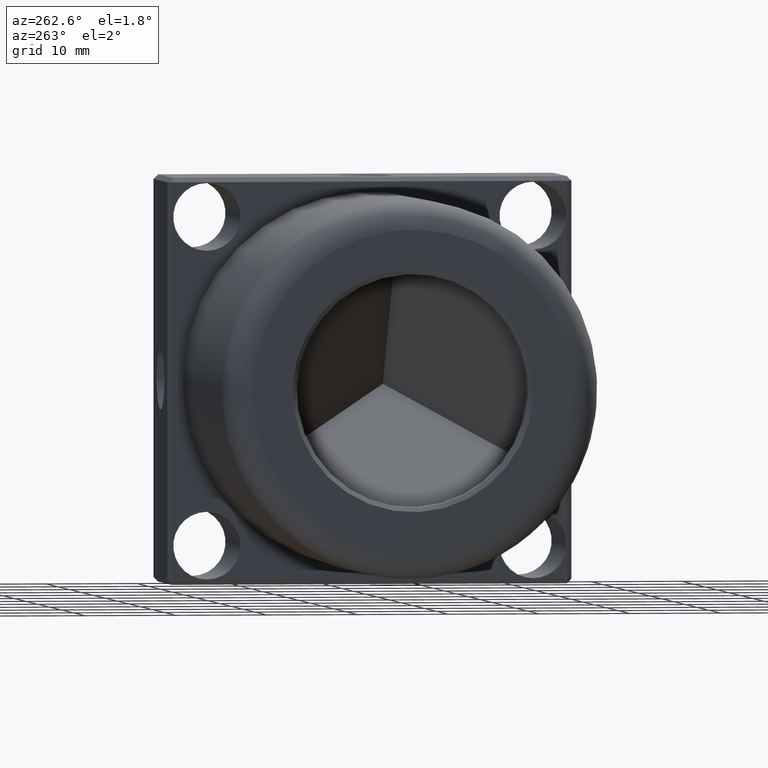
[diagram: clean part render]
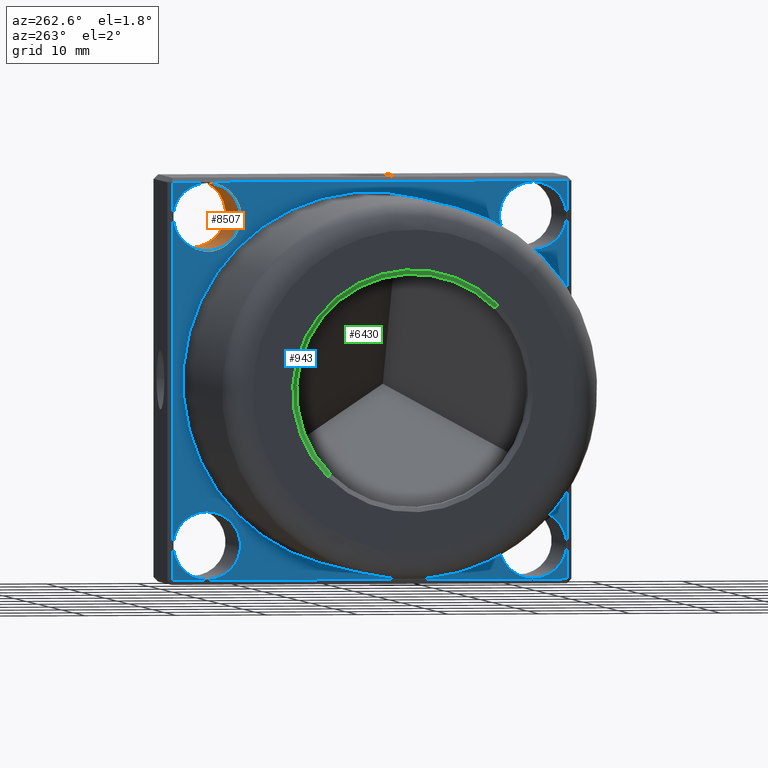
[diagram: same view with three faces highlighted in distinct colors, each labeled with its STEP entity id]
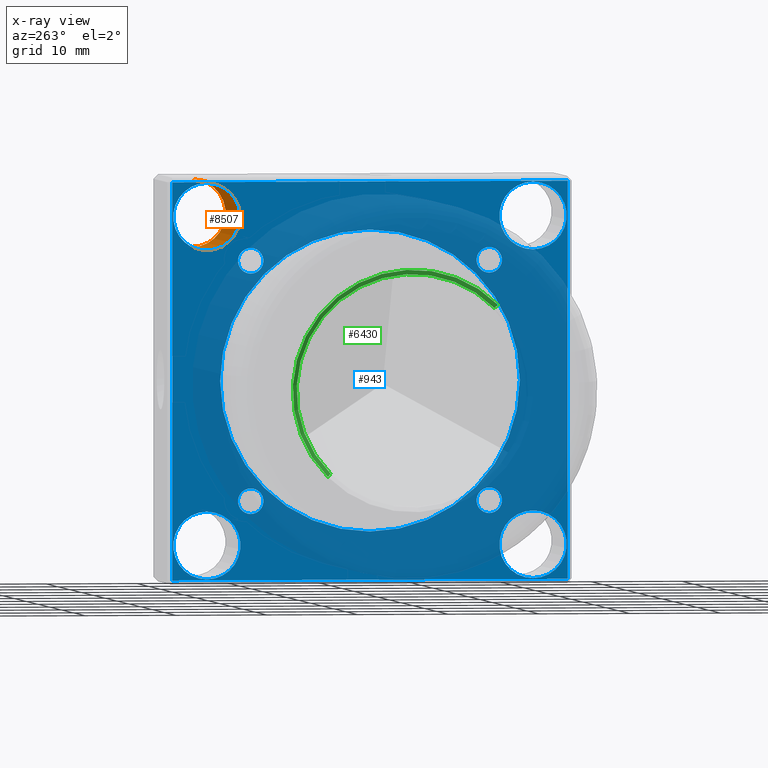
[diagram: x-ray of the same camera — body ghosted, the three highlighted faces saturated]
A machine part, auxiliary view with three faces highlighted in distinct colors.
The next image is the same camera in x-ray (body ghosted, the three faces saturated) — at least one of them is partly hidden behind the body in this view.
Their STEP definitions:

[orange] entity #8507 — the highlighted cylindrical surface (edge-blend (fillet) strip) has radius 3.7 mm, axis along (-1, 0, -0).
#88 = CARTESIAN_POINT ( 'NONE',  ( 36.50000000000000700, 17.96051224213820400, 14.26051224213839700 ) ) ;
#182 = VECTOR ( 'NONE', #305, 1000.000000000000000 ) ;
#305 = DIRECTION ( 'NONE',  ( -1.000000000000000000, 1.036413853914698600E-017, -5.453505792938099400E-017 ) ) ;
#348 = DIRECTION ( 'NONE',  ( -1.000000000000000000, 1.036413853914698600E-017, -5.453505792938099400E-017 ) ) ;
#468 = EDGE_CURVE ( 'NONE', #1265, #3286, #6490, .T. ) ;
#768 = FACE_OUTER_BOUND ( 'NONE', #4393, .T. ) ;
#800 = EDGE_CURVE ( 'NONE', #7990, #1265, #3995, .T. ) ;
#1040 = DIRECTION ( 'NONE',  ( -1.000000000000000000, 1.036413853914698600E-017, -5.453505792938099400E-017 ) ) ;
#1265 = VERTEX_POINT ( 'NONE', #4453 ) ;
#1509 = VECTOR ( 'NONE', #1040, 1000.000000000000000 ) ;
#2001 = CARTESIAN_POINT ( 'NONE',  ( 36.50000000000000700, 17.96051224213820400, 21.66051224213839900 ) ) ;
#2101 = CIRCLE ( 'NONE', #11184, 3.700000000000002000 ) ;
#2306 = VERTEX_POINT ( 'NONE', #88 ) ;
#2364 = LINE ( 'NONE', #3172, #182 ) ;
#2897 = CARTESIAN_POINT ( 'NONE',  ( 36.50000000000000700, 17.96051224213820400, 21.66051224213839900 ) ) ;
#3172 = CARTESIAN_POINT ( 'NONE',  ( 36.50000000000000700, 17.96051224213820400, 14.26051224213839700 ) ) ;
#3286 = VERTEX_POINT ( 'NONE', #2001 ) ;
#3626 = DIRECTION ( 'NONE',  ( -1.000000000000000000, 1.036413853914698600E-017, -5.453505792938099400E-017 ) ) ;
#3995 = CIRCLE ( 'NONE', #6435, 3.700000000000002000 ) ;
#4087 = CARTESIAN_POINT ( 'NONE',  ( 36.50000000000000700, 17.96051224213820400, 17.96051224213839600 ) ) ;
#4393 = EDGE_LOOP ( 'NONE', ( #7264, #11584, #5200, #5828 ) ) ;
#4453 = CARTESIAN_POINT ( 'NONE',  ( 49.20000000000000300, 17.96051224213820400, 21.66051224213839900 ) ) ;
#4958 = EDGE_CURVE ( 'NONE', #7990, #2306, #2364, .T. ) ;
#5200 = ORIENTED_EDGE ( 'NONE', *, *, #7226, .T. ) ;
#5828 = ORIENTED_EDGE ( 'NONE', *, *, #468, .F. ) ;
#5936 = AXIS2_PLACEMENT_3D ( 'NONE', #4087, #6932, #10688 ) ;
#5963 = CARTESIAN_POINT ( 'NONE',  ( 49.20000000000000300, 17.96051224213820400, 17.96051224213839600 ) ) ;
#6435 = AXIS2_PLACEMENT_3D ( 'NONE', #5963, #348, #6922 ) ;
#6490 = LINE ( 'NONE', #2897, #1509 ) ;
#6922 = DIRECTION ( 'NONE',  ( 0.0000000000000000000, 0.0000000000000000000, 1.000000000000000000 ) ) ;
#6932 = DIRECTION ( 'NONE',  ( -1.000000000000000000, 1.036413853914698600E-017, -5.453505792938099400E-017 ) ) ;
#7226 = EDGE_CURVE ( 'NONE', #2306, #3286, #2101, .T. ) ;
#7264 = ORIENTED_EDGE ( 'NONE', *, *, #800, .F. ) ;
#7990 = VERTEX_POINT ( 'NONE', #10741 ) ;
#8507 = ADVANCED_FACE ( 'NONE', ( #768 ), #9280, .F. ) ;
#9237 = CARTESIAN_POINT ( 'NONE',  ( 36.50000000000000700, 17.96051224213820400, 17.96051224213839600 ) ) ;
#9280 = CYLINDRICAL_SURFACE ( 'NONE', #5936, 3.700000000000002000 ) ;
#10167 = DIRECTION ( 'NONE',  ( 0.0000000000000000000, 0.0000000000000000000, 1.000000000000000000 ) ) ;
#10688 = DIRECTION ( 'NONE',  ( 0.0000000000000000000, 0.0000000000000000000, 1.000000000000000000 ) ) ;
#10741 = CARTESIAN_POINT ( 'NONE',  ( 49.20000000000000300, 17.96051224213820400, 14.26051224213839700 ) ) ;
#11184 = AXIS2_PLACEMENT_3D ( 'NONE', #9237, #3626, #10167 ) ;
#11584 = ORIENTED_EDGE ( 'NONE', *, *, #4958, .T. ) ;

[blue] entity #943 — the highlighted planar face has unit normal (-1, 0, -0).
#43 = EDGE_LOOP ( 'NONE', ( #5583, #5475 ) ) ;
#88 = CARTESIAN_POINT ( 'NONE',  ( 36.50000000000000700, 17.96051224213820400, 14.26051224213839700 ) ) ;
#162 = ORIENTED_EDGE ( 'NONE', *, *, #320, .F. ) ;
#290 = ORIENTED_EDGE ( 'NONE', *, *, #6933, .F. ) ;
#320 = EDGE_CURVE ( 'NONE', #1702, #11603, #7962, .T. ) ;
#648 = ORIENTED_EDGE ( 'NONE', *, *, #7898, .F. ) ;
#654 = AXIS2_PLACEMENT_3D ( 'NONE', #11996, #6397, #770 ) ;
#667 = VECTOR ( 'NONE', #4351, 1000.000000000000000 ) ;
#719 = VERTEX_POINT ( 'NONE', #6860 ) ;
#746 = LINE ( 'NONE', #919, #5435 ) ;
#749 = DIRECTION ( 'NONE',  ( -1.000000000000000000, 1.036413853914698600E-017, -5.453505792938099400E-017 ) ) ;
#764 = CIRCLE ( 'NONE', #6151, 1.400000000000000100 ) ;
#770 = DIRECTION ( 'NONE',  ( 0.0000000000000000000, 0.0000000000000000000, 1.000000000000000000 ) ) ;
#881 = CARTESIAN_POINT ( 'NONE',  ( 36.50000000000000700, 13.13450846054023700, -14.53450846054000100 ) ) ;
#909 = FACE_BOUND ( 'NONE', #11375, .T. ) ;
#919 = CARTESIAN_POINT ( 'NONE',  ( 36.50000000000000000, 22.25000000000000400, 21.74999999999999600 ) ) ;
#943 = ADVANCED_FACE ( 'NONE', ( #8696, #3677, #6164, #11151, #1205, #10865, #8366, #5886, #3382, #909 ), #4180, .T. ) ;
#953 = CARTESIAN_POINT ( 'NONE',  ( 36.50000000000000700, -13.13450846054004200, -13.13450846054019800 ) ) ;
#970 = ORIENTED_EDGE ( 'NONE', *, *, #5397, .F. ) ;
#1028 = CARTESIAN_POINT ( 'NONE',  ( 36.50000000000000700, 13.13450846054004200, 13.13450846054019800 ) ) ;
#1049 = AXIS2_PLACEMENT_3D ( 'NONE', #1686, #8243, #2618 ) ;
#1052 = VERTEX_POINT ( 'NONE', #10168 ) ;
#1114 = DIRECTION ( 'NONE',  ( -1.000000000000000000, 1.036413853914698600E-017, -5.453505792938099400E-017 ) ) ;
#1136 = CIRCLE ( 'NONE', #10945, 3.700000000000002000 ) ;
#1205 = FACE_OUTER_BOUND ( 'NONE', #7199, .T. ) ;
#1312 = CARTESIAN_POINT ( 'NONE',  ( 36.50000000000000000, -17.96051224213844600, 17.96051224213815400 ) ) ;
#1321 = ORIENTED_EDGE ( 'NONE', *, *, #1426, .F. ) ;
#1324 = CARTESIAN_POINT ( 'NONE',  ( 36.50000000000000700, 1.316245594471667700E-016, -6.925952357031400500E-016 ) ) ;
#1393 = CARTESIAN_POINT ( 'NONE',  ( 36.50000000000000700, -17.96051224213820400, -21.66051224213839900 ) ) ;
#1413 = CIRCLE ( 'NONE', #1049, 3.700000000000002000 ) ;
#1426 = EDGE_CURVE ( 'NONE', #1915, #2641, #9004, .T. ) ;
#1544 = ORIENTED_EDGE ( 'NONE', *, *, #7080, .T. ) ;
#1546 = ORIENTED_EDGE ( 'NONE', *, *, #3452, .T. ) ;
#1686 = CARTESIAN_POINT ( 'NONE',  ( 36.50000000000000000, -17.96051224213844600, 17.96051224213815400 ) ) ;
#1702 = VERTEX_POINT ( 'NONE', #10795 ) ;
#1704 = DIRECTION ( 'NONE',  ( -1.000000000000000000, 1.036413853914698600E-017, -5.453505792938099400E-017 ) ) ;
#1879 = DIRECTION ( 'NONE',  ( 0.0000000000000000000, 0.0000000000000000000, 1.000000000000000000 ) ) ;
#1915 = VERTEX_POINT ( 'NONE', #8411 ) ;
#1960 = DIRECTION ( 'NONE',  ( 0.0000000000000000000, 0.0000000000000000000, 1.000000000000000000 ) ) ;
#2001 = CARTESIAN_POINT ( 'NONE',  ( 36.50000000000000700, 17.96051224213820400, 21.66051224213839900 ) ) ;
#2101 = CIRCLE ( 'NONE', #11184, 3.700000000000002000 ) ;
#2104 = CIRCLE ( 'NONE', #9820, 3.700000000000000200 ) ;
#2116 = AXIS2_PLACEMENT_3D ( 'NONE', #1028, #7585, #1960 ) ;
#2256 = DIRECTION ( 'NONE',  ( 0.0000000000000000000, 0.0000000000000000000, 1.000000000000000000 ) ) ;
#2264 = DIRECTION ( 'NONE',  ( 0.0000000000000000000, 1.110223024625155800E-016, 1.000000000000000000 ) ) ;
#2306 = VERTEX_POINT ( 'NONE', #88 ) ;
#2328 = DIRECTION ( 'NONE',  ( -1.000000000000000000, 1.036413853914698400E-017, -5.453505792938079700E-017 ) ) ;
#2487 = CIRCLE ( 'NONE', #3732, 1.400000000000000100 ) ;
#2519 = CIRCLE ( 'NONE', #4544, 1.400000000000000100 ) ;
#2618 = DIRECTION ( 'NONE',  ( 0.0000000000000000000, 0.0000000000000000000, 1.000000000000000000 ) ) ;
#2641 = VERTEX_POINT ( 'NONE', #11964 ) ;
#2726 = EDGE_CURVE ( 'NONE', #6643, #4318, #746, .T. ) ;
#2735 = DIRECTION ( 'NONE',  ( -1.000000000000000000, 1.036413853914698600E-017, -5.453505792938099400E-017 ) ) ;
#2869 = EDGE_CURVE ( 'NONE', #5326, #4666, #11718, .T. ) ;
#3212 = EDGE_CURVE ( 'NONE', #7359, #11201, #6228, .T. ) ;
#3286 = VERTEX_POINT ( 'NONE', #2001 ) ;
#3300 = EDGE_CURVE ( 'NONE', #11201, #7359, #8152, .T. ) ;
#3309 = CIRCLE ( 'NONE', #654, 3.700000000000000200 ) ;
#3382 = FACE_BOUND ( 'NONE', #7948, .T. ) ;
#3452 = EDGE_CURVE ( 'NONE', #719, #11122, #3909, .T. ) ;
#3505 = VERTEX_POINT ( 'NONE', #4081 ) ;
#3544 = CARTESIAN_POINT ( 'NONE',  ( 36.50000000000000700, 13.13450846054004200, 14.53450846054019900 ) ) ;
#3593 = CIRCLE ( 'NONE', #8993, 16.50000000000000000 ) ;
#3626 = DIRECTION ( 'NONE',  ( -1.000000000000000000, 1.036413853914698600E-017, -5.453505792938099400E-017 ) ) ;
#3677 = FACE_BOUND ( 'NONE', #5045, .T. ) ;
#3732 = AXIS2_PLACEMENT_3D ( 'NONE', #6362, #749, #7326 ) ;
#3778 = DIRECTION ( 'NONE',  ( -1.000000000000000000, 1.036413853914698600E-017, -5.453505792938099400E-017 ) ) ;
#3909 = LINE ( 'NONE', #4932, #6384 ) ;
#4081 = CARTESIAN_POINT ( 'NONE',  ( 36.50000000000000700, 3.989341837941380600E-015, 16.50000000000000000 ) ) ;
#4180 = PLANE ( 'NONE',  #4626 ) ;
#4318 = VERTEX_POINT ( 'NONE', #6313 ) ;
#4351 = DIRECTION ( 'NONE',  ( -5.453505792938079700E-017, 1.110223024625155900E-016, 1.000000000000000000 ) ) ;
#4357 = EDGE_CURVE ( 'NONE', #3286, #2306, #1136, .T. ) ;
#4392 = EDGE_CURVE ( 'NONE', #2641, #1915, #3309, .T. ) ;
#4402 = CIRCLE ( 'NONE', #7113, 1.400000000000000100 ) ;
#4422 = CARTESIAN_POINT ( 'NONE',  ( 36.50000000000000700, -13.13450846054023700, 14.53450846054000100 ) ) ;
#4544 = AXIS2_PLACEMENT_3D ( 'NONE', #10538, #4917, #11481 ) ;
#4607 = AXIS2_PLACEMENT_3D ( 'NONE', #6723, #1114, #7663 ) ;
#4609 = CARTESIAN_POINT ( 'NONE',  ( 36.50000000000000700, 17.96051224213859500, -17.96051224213800500 ) ) ;
#4626 = AXIS2_PLACEMENT_3D ( 'NONE', #7938, #2328, #8902 ) ;
#4666 = VERTEX_POINT ( 'NONE', #8252 ) ;
#4763 = VERTEX_POINT ( 'NONE', #881 ) ;
#4830 = EDGE_LOOP ( 'NONE', ( #7748, #8505 ) ) ;
#4850 = DIRECTION ( 'NONE',  ( -1.000000000000000000, 1.036413853914698600E-017, -5.453505792938099400E-017 ) ) ;
#4878 = VECTOR ( 'NONE', #8731, 1000.000000000000000 ) ;
#4917 = DIRECTION ( 'NONE',  ( -1.000000000000000000, 1.036413853914698600E-017, -5.453505792938099400E-017 ) ) ;
#4929 = CARTESIAN_POINT ( 'NONE',  ( 36.50000000000000700, 21.74999999999999600, -22.25000000000000400 ) ) ;
#4932 = CARTESIAN_POINT ( 'NONE',  ( 36.50000000000000700, -22.25000000000000400, -21.74999999999999600 ) ) ;
#4975 = CARTESIAN_POINT ( 'NONE',  ( 36.50000000000000700, -13.13450846054023700, 13.13450846054000100 ) ) ;
#4988 = EDGE_LOOP ( 'NONE', ( #7180, #4995 ) ) ;
#4995 = ORIENTED_EDGE ( 'NONE', *, *, #2869, .F. ) ;
#5045 = EDGE_LOOP ( 'NONE', ( #6602, #290 ) ) ;
#5156 = ORIENTED_EDGE ( 'NONE', *, *, #11397, .T. ) ;
#5249 = EDGE_CURVE ( 'NONE', #8674, #10539, #4402, .T. ) ;
#5326 = VERTEX_POINT ( 'NONE', #6893 ) ;
#5331 = CARTESIAN_POINT ( 'NONE',  ( 36.50000000000000700, 1.316245594471667700E-016, -6.925952357031400500E-016 ) ) ;
#5394 = DIRECTION ( 'NONE',  ( -1.000000000000000000, 1.036413853914698600E-017, -5.453505792938099400E-017 ) ) ;
#5397 = EDGE_CURVE ( 'NONE', #3505, #7801, #8358, .T. ) ;
#5435 = VECTOR ( 'NONE', #11187, 1000.000000000000000 ) ;
#5455 = EDGE_CURVE ( 'NONE', #4763, #1052, #2487, .T. ) ;
#5475 = ORIENTED_EDGE ( 'NONE', *, *, #3300, .F. ) ;
#5552 = DIRECTION ( 'NONE',  ( 0.0000000000000000000, 0.0000000000000000000, 1.000000000000000000 ) ) ;
#5583 = ORIENTED_EDGE ( 'NONE', *, *, #3212, .F. ) ;
#5886 = FACE_BOUND ( 'NONE', #4988, .T. ) ;
#5934 = DIRECTION ( 'NONE',  ( 0.0000000000000000000, 0.0000000000000000000, 1.000000000000000000 ) ) ;
#6031 = ORIENTED_EDGE ( 'NONE', *, *, #4357, .F. ) ;
#6151 = AXIS2_PLACEMENT_3D ( 'NONE', #10465, #4850, #11415 ) ;
#6164 = FACE_BOUND ( 'NONE', #43, .T. ) ;
#6228 = CIRCLE ( 'NONE', #2116, 1.400000000000000100 ) ;
#6278 = DIRECTION ( 'NONE',  ( 0.0000000000000000000, 1.110223024625155800E-016, 1.000000000000000000 ) ) ;
#6313 = CARTESIAN_POINT ( 'NONE',  ( 36.50000000000000000, 21.75000000000000400, 21.74999999999999600 ) ) ;
#6362 = CARTESIAN_POINT ( 'NONE',  ( 36.50000000000000700, 13.13450846054023700, -13.13450846054000100 ) ) ;
#6384 = VECTOR ( 'NONE', #10564, 1000.000000000000000 ) ;
#6397 = DIRECTION ( 'NONE',  ( -1.000000000000000000, 1.036413853914698600E-017, -5.453505792938099400E-017 ) ) ;
#6441 = EDGE_LOOP ( 'NONE', ( #6963, #1321 ) ) ;
#6583 = CIRCLE ( 'NONE', #6644, 1.400000000000000100 ) ;
#6602 = ORIENTED_EDGE ( 'NONE', *, *, #5455, .F. ) ;
#6643 = VERTEX_POINT ( 'NONE', #10840 ) ;
#6644 = AXIS2_PLACEMENT_3D ( 'NONE', #8349, #2735, #9302 ) ;
#6723 = CARTESIAN_POINT ( 'NONE',  ( 36.50000000000000700, 13.13450846054004200, 13.13450846054019800 ) ) ;
#6765 = ORIENTED_EDGE ( 'NONE', *, *, #7226, .F. ) ;
#6860 = CARTESIAN_POINT ( 'NONE',  ( 36.50000000000000700, 21.74999999999999600, -21.75000000000000400 ) ) ;
#6893 = CARTESIAN_POINT ( 'NONE',  ( 36.50000000000000000, -17.96051224213844600, 14.26051224213815500 ) ) ;
#6933 = EDGE_CURVE ( 'NONE', #1052, #4763, #764, .T. ) ;
#6963 = ORIENTED_EDGE ( 'NONE', *, *, #4392, .F. ) ;
#7080 = EDGE_CURVE ( 'NONE', #4318, #719, #7380, .T. ) ;
#7093 = CARTESIAN_POINT ( 'NONE',  ( 36.50000000000000700, -21.75000000000000400, -21.74999999999999600 ) ) ;
#7113 = AXIS2_PLACEMENT_3D ( 'NONE', #4975, #11546, #5934 ) ;
#7130 = EDGE_CURVE ( 'NONE', #8953, #7437, #9864, .T. ) ;
#7180 = ORIENTED_EDGE ( 'NONE', *, *, #11450, .F. ) ;
#7199 = EDGE_LOOP ( 'NONE', ( #1544, #1546, #5156, #10223 ) ) ;
#7217 = AXIS2_PLACEMENT_3D ( 'NONE', #1312, #7859, #2256 ) ;
#7226 = EDGE_CURVE ( 'NONE', #2306, #3286, #2101, .T. ) ;
#7326 = DIRECTION ( 'NONE',  ( 0.0000000000000000000, 0.0000000000000000000, 1.000000000000000000 ) ) ;
#7333 = CARTESIAN_POINT ( 'NONE',  ( 36.50000000000000700, -17.96051224213820400, -17.96051224213839600 ) ) ;
#7359 = VERTEX_POINT ( 'NONE', #9418 ) ;
#7380 = LINE ( 'NONE', #4929, #4878 ) ;
#7437 = VERTEX_POINT ( 'NONE', #1393 ) ;
#7500 = DIRECTION ( 'NONE',  ( -1.000000000000000000, 1.036413853914698600E-017, -5.453505792938099400E-017 ) ) ;
#7585 = DIRECTION ( 'NONE',  ( -1.000000000000000000, 1.036413853914698600E-017, -5.453505792938099400E-017 ) ) ;
#7663 = DIRECTION ( 'NONE',  ( 0.0000000000000000000, 0.0000000000000000000, 1.000000000000000000 ) ) ;
#7748 = ORIENTED_EDGE ( 'NONE', *, *, #7130, .F. ) ;
#7801 = VERTEX_POINT ( 'NONE', #11526 ) ;
#7859 = DIRECTION ( 'NONE',  ( -1.000000000000000000, 1.036413853914698600E-017, -5.453505792938099400E-017 ) ) ;
#7871 = DIRECTION ( 'NONE',  ( -1.000000000000000000, 1.036413853914698600E-017, -5.453505792938099400E-017 ) ) ;
#7898 = EDGE_CURVE ( 'NONE', #7801, #3505, #3593, .T. ) ;
#7938 = CARTESIAN_POINT ( 'NONE',  ( 36.50000000000000700, 1.316245594471667700E-016, -6.925952357031400500E-016 ) ) ;
#7948 = EDGE_LOOP ( 'NONE', ( #6031, #6765 ) ) ;
#7962 = CIRCLE ( 'NONE', #9433, 1.400000000000000100 ) ;
#8152 = CIRCLE ( 'NONE', #4607, 1.400000000000000100 ) ;
#8153 = LINE ( 'NONE', #9989, #667 ) ;
#8243 = DIRECTION ( 'NONE',  ( -1.000000000000000000, 1.036413853914698600E-017, -5.453505792938099400E-017 ) ) ;
#8252 = CARTESIAN_POINT ( 'NONE',  ( 36.50000000000000000, -17.96051224213844600, 21.66051224213815700 ) ) ;
#8260 = DIRECTION ( 'NONE',  ( 0.0000000000000000000, 0.0000000000000000000, 1.000000000000000000 ) ) ;
#8349 = CARTESIAN_POINT ( 'NONE',  ( 36.50000000000000700, -13.13450846054004200, -13.13450846054019800 ) ) ;
#8358 = CIRCLE ( 'NONE', #10873, 16.50000000000000000 ) ;
#8366 = FACE_BOUND ( 'NONE', #4830, .T. ) ;
#8411 = CARTESIAN_POINT ( 'NONE',  ( 36.50000000000000700, 17.96051224213859500, -21.66051224213800500 ) ) ;
#8428 = ORIENTED_EDGE ( 'NONE', *, *, #10683, .F. ) ;
#8505 = ORIENTED_EDGE ( 'NONE', *, *, #11552, .F. ) ;
#8674 = VERTEX_POINT ( 'NONE', #11154 ) ;
#8696 = FACE_BOUND ( 'NONE', #9290, .T. ) ;
#8731 = DIRECTION ( 'NONE',  ( 5.453505792938079700E-017, -1.110223024625155900E-016, -1.000000000000000000 ) ) ;
#8902 = DIRECTION ( 'NONE',  ( -5.453505792938079700E-017, 1.110223024625155900E-016, 1.000000000000000000 ) ) ;
#8953 = VERTEX_POINT ( 'NONE', #10504 ) ;
#8993 = AXIS2_PLACEMENT_3D ( 'NONE', #1324, #7871, #2264 ) ;
#9004 = CIRCLE ( 'NONE', #12089, 3.700000000000000200 ) ;
#9237 = CARTESIAN_POINT ( 'NONE',  ( 36.50000000000000700, 17.96051224213820400, 17.96051224213839600 ) ) ;
#9290 = EDGE_LOOP ( 'NONE', ( #11848, #10806 ) ) ;
#9302 = DIRECTION ( 'NONE',  ( 0.0000000000000000000, 0.0000000000000000000, 1.000000000000000000 ) ) ;
#9401 = CARTESIAN_POINT ( 'NONE',  ( 36.50000000000000700, -17.96051224213820400, -17.96051224213839600 ) ) ;
#9418 = CARTESIAN_POINT ( 'NONE',  ( 36.50000000000000700, 13.13450846054004200, 11.73450846054019800 ) ) ;
#9433 = AXIS2_PLACEMENT_3D ( 'NONE', #953, #7500, #1879 ) ;
#9820 = AXIS2_PLACEMENT_3D ( 'NONE', #9401, #3778, #10321 ) ;
#9864 = CIRCLE ( 'NONE', #9922, 3.700000000000000200 ) ;
#9922 = AXIS2_PLACEMENT_3D ( 'NONE', #7333, #1704, #8260 ) ;
#9989 = CARTESIAN_POINT ( 'NONE',  ( 36.50000000000000000, -21.74999999999999600, 22.25000000000000400 ) ) ;
#10167 = DIRECTION ( 'NONE',  ( 0.0000000000000000000, 0.0000000000000000000, 1.000000000000000000 ) ) ;
#10168 = CARTESIAN_POINT ( 'NONE',  ( 36.50000000000000700, 13.13450846054023700, -11.73450846054000100 ) ) ;
#10223 = ORIENTED_EDGE ( 'NONE', *, *, #2726, .T. ) ;
#10321 = DIRECTION ( 'NONE',  ( 0.0000000000000000000, 0.0000000000000000000, 1.000000000000000000 ) ) ;
#10364 = CARTESIAN_POINT ( 'NONE',  ( 36.50000000000000700, -13.13450846054004200, -11.73450846054019800 ) ) ;
#10465 = CARTESIAN_POINT ( 'NONE',  ( 36.50000000000000700, 13.13450846054023700, -13.13450846054000100 ) ) ;
#10504 = CARTESIAN_POINT ( 'NONE',  ( 36.50000000000000700, -17.96051224213820400, -14.26051224213839700 ) ) ;
#10538 = CARTESIAN_POINT ( 'NONE',  ( 36.50000000000000700, -13.13450846054023700, 13.13450846054000100 ) ) ;
#10539 = VERTEX_POINT ( 'NONE', #4422 ) ;
#10564 = DIRECTION ( 'NONE',  ( -1.036413853914701000E-017, -1.000000000000000000, 1.110223024625155900E-016 ) ) ;
#10610 = EDGE_LOOP ( 'NONE', ( #162, #8428 ) ) ;
#10683 = EDGE_CURVE ( 'NONE', #11603, #1702, #6583, .T. ) ;
#10795 = CARTESIAN_POINT ( 'NONE',  ( 36.50000000000000700, -13.13450846054004200, -14.53450846054019900 ) ) ;
#10806 = ORIENTED_EDGE ( 'NONE', *, *, #11753, .F. ) ;
#10840 = CARTESIAN_POINT ( 'NONE',  ( 36.50000000000000000, -21.74999999999999600, 21.75000000000000400 ) ) ;
#10865 = FACE_BOUND ( 'NONE', #6441, .T. ) ;
#10873 = AXIS2_PLACEMENT_3D ( 'NONE', #5331, #11888, #6278 ) ;
#10945 = AXIS2_PLACEMENT_3D ( 'NONE', #11032, #5394, #11963 ) ;
#11032 = CARTESIAN_POINT ( 'NONE',  ( 36.50000000000000700, 17.96051224213820400, 17.96051224213839600 ) ) ;
#11122 = VERTEX_POINT ( 'NONE', #7093 ) ;
#11151 = FACE_BOUND ( 'NONE', #10610, .T. ) ;
#11154 = CARTESIAN_POINT ( 'NONE',  ( 36.50000000000000700, -13.13450846054023700, 11.73450846054000100 ) ) ;
#11177 = DIRECTION ( 'NONE',  ( -1.000000000000000000, 1.036413853914698600E-017, -5.453505792938099400E-017 ) ) ;
#11184 = AXIS2_PLACEMENT_3D ( 'NONE', #9237, #3626, #10167 ) ;
#11187 = DIRECTION ( 'NONE',  ( 1.036413853914701000E-017, 1.000000000000000000, -1.110223024625155900E-016 ) ) ;
#11201 = VERTEX_POINT ( 'NONE', #3544 ) ;
#11375 = EDGE_LOOP ( 'NONE', ( #648, #970 ) ) ;
#11397 = EDGE_CURVE ( 'NONE', #11122, #6643, #8153, .T. ) ;
#11415 = DIRECTION ( 'NONE',  ( 0.0000000000000000000, 0.0000000000000000000, 1.000000000000000000 ) ) ;
#11450 = EDGE_CURVE ( 'NONE', #4666, #5326, #1413, .T. ) ;
#11481 = DIRECTION ( 'NONE',  ( 0.0000000000000000000, 0.0000000000000000000, 1.000000000000000000 ) ) ;
#11526 = CARTESIAN_POINT ( 'NONE',  ( 36.50000000000000700, -1.695061361914766900E-015, -16.50000000000000000 ) ) ;
#11546 = DIRECTION ( 'NONE',  ( -1.000000000000000000, 1.036413853914698600E-017, -5.453505792938099400E-017 ) ) ;
#11552 = EDGE_CURVE ( 'NONE', #7437, #8953, #2104, .T. ) ;
#11603 = VERTEX_POINT ( 'NONE', #10364 ) ;
#11718 = CIRCLE ( 'NONE', #7217, 3.700000000000002000 ) ;
#11753 = EDGE_CURVE ( 'NONE', #10539, #8674, #2519, .T. ) ;
#11848 = ORIENTED_EDGE ( 'NONE', *, *, #5249, .F. ) ;
#11888 = DIRECTION ( 'NONE',  ( -1.000000000000000000, 1.036413853914698600E-017, -5.453505792938099400E-017 ) ) ;
#11963 = DIRECTION ( 'NONE',  ( 0.0000000000000000000, 0.0000000000000000000, 1.000000000000000000 ) ) ;
#11964 = CARTESIAN_POINT ( 'NONE',  ( 36.50000000000000700, 17.96051224213859500, -14.26051224213800600 ) ) ;
#11996 = CARTESIAN_POINT ( 'NONE',  ( 36.50000000000000700, 17.96051224213859500, -17.96051224213800500 ) ) ;
#12089 = AXIS2_PLACEMENT_3D ( 'NONE', #4609, #11177, #5552 ) ;

[green] entity #6430 — the highlighted conical surface has half-angle 45 deg.
#172 = ORIENTED_EDGE ( 'NONE', *, *, #4740, .T. ) ;
#235 = DIRECTION ( 'NONE',  ( 1.000000000000000000, -6.489919646852779600E-017, 4.417091939023369800E-017 ) ) ;
#1193 = CARTESIAN_POINT ( 'NONE',  ( -1.021895895768059300E-015, -9.369164850721841000, 9.369164850721666900 ) ) ;
#1272 = FACE_OUTER_BOUND ( 'NONE', #10159, .T. ) ;
#1468 = AXIS2_PLACEMENT_3D ( 'NONE', #5832, #235, #6802 ) ;
#1674 = LINE ( 'NONE', #5210, #8881 ) ;
#2312 = AXIS2_PLACEMENT_3D ( 'NONE', #11156, #10201, #11202 ) ;
#2747 = CIRCLE ( 'NONE', #1468, 13.24999999999999800 ) ;
#2812 = VERTEX_POINT ( 'NONE', #1193 ) ;
#3356 = ORIENTED_EDGE ( 'NONE', *, *, #6020, .F. ) ;
#3405 = LINE ( 'NONE', #4593, #8107 ) ;
#4054 = CARTESIAN_POINT ( 'NONE',  ( 0.5000000000000071100, -3.244959823426435400E-017, 2.208545969511716000E-017 ) ) ;
#4454 = ORIENTED_EDGE ( 'NONE', *, *, #9833, .F. ) ;
#4593 = CARTESIAN_POINT ( 'NONE',  ( -1.021895895768059700E-015, -9.369164850721841000, 9.369164850721666900 ) ) ;
#4740 = EDGE_CURVE ( 'NONE', #7144, #2812, #3405, .T. ) ;
#4843 = VERTEX_POINT ( 'NONE', #8610 ) ;
#4971 = DIRECTION ( 'NONE',  ( -7.653191805780032500E-017, -0.7071067811865540100, 0.7071067811865410200 ) ) ;
#5210 = CARTESIAN_POINT ( 'NONE',  ( 1.021895895768059700E-015, 9.369164850721841000, -9.369164850721665200 ) ) ;
#5832 = CARTESIAN_POINT ( 'NONE',  ( 0.0000000000000000000, 0.0000000000000000000, 0.0000000000000000000 ) ) ;
#6020 = EDGE_CURVE ( 'NONE', #7144, #4843, #8161, .T. ) ;
#6430 = ADVANCED_FACE ( 'NONE', ( #1272 ), #7278, .F. ) ;
#6802 = DIRECTION ( 'NONE',  ( -7.712421854853281400E-017, -0.7071067811865541200, 0.7071067811865410200 ) ) ;
#6901 = CARTESIAN_POINT ( 'NONE',  ( 1.021895895768059300E-015, 9.369164850721841000, -9.369164850721665200 ) ) ;
#7144 = VERTEX_POINT ( 'NONE', #11980 ) ;
#7278 = CONICAL_SURFACE ( 'NONE', #2312, 13.24999999999999800, 0.7853981633974482800 ) ;
#8107 = VECTOR ( 'NONE', #9275, 1000.000000000000000 ) ;
#8161 = CIRCLE ( 'NONE', #10300, 12.74999999999999800 ) ;
#8610 = CARTESIAN_POINT ( 'NONE',  ( 0.5000000000000079900, 9.015611460128562600, -9.015611460128397400 ) ) ;
#8881 = VECTOR ( 'NONE', #11743, 1000.000000000000000 ) ;
#8940 = EDGE_CURVE ( 'NONE', #10999, #2812, #2747, .T. ) ;
#9275 = DIRECTION ( 'NONE',  ( -0.7071067811865475700, -0.5000000000000045500, 0.4999999999999953400 ) ) ;
#9833 = EDGE_CURVE ( 'NONE', #4843, #10999, #1674, .T. ) ;
#10159 = EDGE_LOOP ( 'NONE', ( #4454, #3356, #172, #11312 ) ) ;
#10201 = DIRECTION ( 'NONE',  ( -1.000000000000000000, 6.489919646852779600E-017, -4.417091939023369800E-017 ) ) ;
#10300 = AXIS2_PLACEMENT_3D ( 'NONE', #4054, #10603, #4971 ) ;
#10603 = DIRECTION ( 'NONE',  ( -1.000000000000000000, 6.489919646852779600E-017, -4.417091939023369800E-017 ) ) ;
#10999 = VERTEX_POINT ( 'NONE', #6901 ) ;
#11156 = CARTESIAN_POINT ( 'NONE',  ( 0.0000000000000000000, 0.0000000000000000000, 0.0000000000000000000 ) ) ;
#11202 = DIRECTION ( 'NONE',  ( -7.712421854853281400E-017, -0.7071067811865541200, 0.7071067811865410200 ) ) ;
#11312 = ORIENTED_EDGE ( 'NONE', *, *, #8940, .F. ) ;
#11743 = DIRECTION ( 'NONE',  ( -0.7071067811865475700, 0.5000000000000046600, -0.4999999999999953900 ) ) ;
#11980 = CARTESIAN_POINT ( 'NONE',  ( 0.5000000000000061100, -9.015611460128562600, 9.015611460128399200 ) ) ;